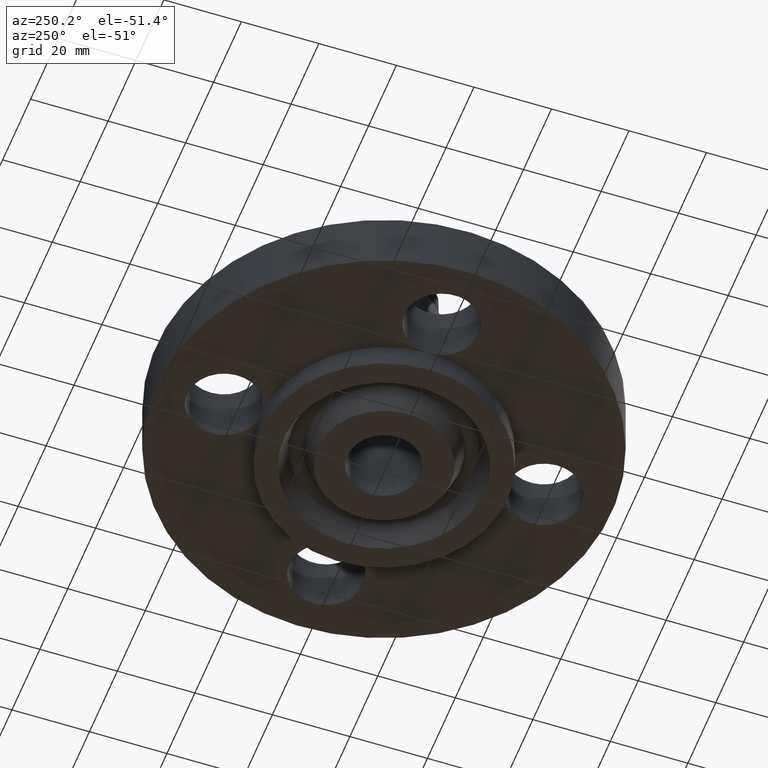
[diagram: clean part render]
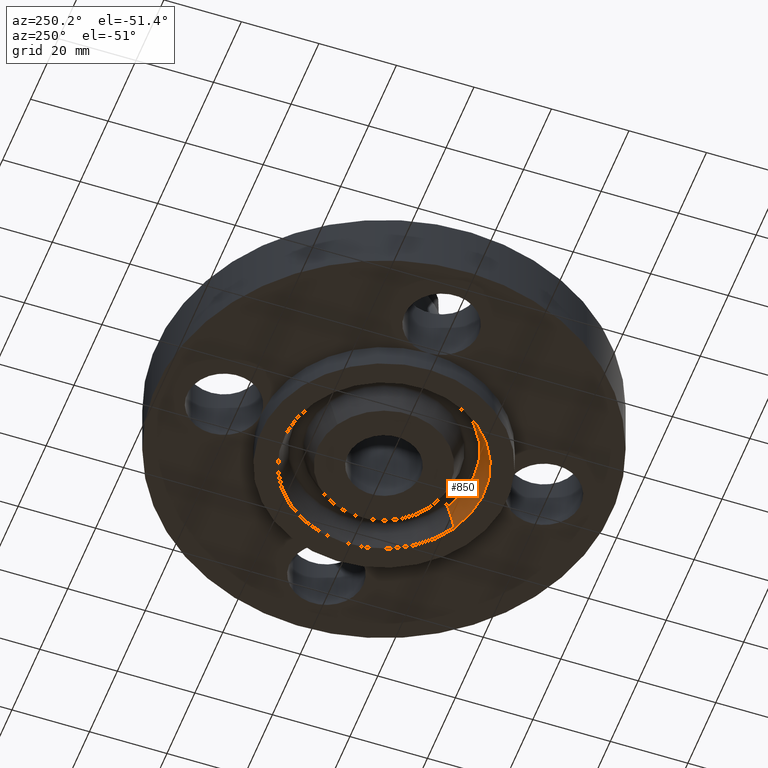
[diagram: same view with one face highlighted and labeled with its STEP entity id]
A machine part, auxiliary view. The second image highlights one B-rep face of the part: STEP entity #850.
In plain terms, the highlighted conical surface has half-angle 23 deg.
Its self-contained STEP definition (entity closure, byte-faithful):
#749=AXIS2_PLACEMENT_3D('Circle Axis2P3D',#747,#748,$) ;
#796=AXIS2_PLACEMENT_3D('Circle Axis2P3D',#794,#795,$) ;
#832=AXIS2_PLACEMENT_3D('Cone Axis2P3D',#829,#830,#831) ;
#747=CARTESIAN_POINT('Axis2P3D Location',(-1.04902962957E-016,-1.39870617276E-016,-0.250000000001)) ;
#751=CARTESIAN_POINT('Vertex',(0.487096347224,-0.891623882884,-0.250000000001)) ;
#753=CARTESIAN_POINT('Vertex',(-0.487096347224,0.891623882884,-0.250000000001)) ;
#794=CARTESIAN_POINT('Axis2P3D Location',(0.,0.,-0.0188873350169)) ;
#798=CARTESIAN_POINT('Vertex',(-0.440063979875,0.80553171193,-0.0188873350169)) ;
#800=CARTESIAN_POINT('Vertex',(0.440063979875,-0.80553171193,-0.0188873350169)) ;
#829=CARTESIAN_POINT('Axis2P3D Location',(0.,0.,-0.0188873350169)) ;
#834=CARTESIAN_POINT('Line Origine',(-0.46358016355,0.848577797407,-0.134443667509)) ;
#839=CARTESIAN_POINT('Line Origine',(0.46358016355,-0.848577797407,-0.134443667509)) ;
#748=DIRECTION('Axis2P3D Direction',(0.,0.,-0.0393700787402)) ;
#795=DIRECTION('Axis2P3D Direction',(0.,0.,0.0393700787402)) ;
#830=DIRECTION('Axis2P3D Direction',(-0.,-0.,-0.0393700787402)) ;
#831=DIRECTION('Axis2P3D XDirection',(-0.0188750212049,0.0345504945626,0.)) ;
#835=DIRECTION('Vector Direction',(-0.00737505833565,0.0134999537303,-0.0362403485611)) ;
#840=DIRECTION('Vector Direction',(0.00737505833565,-0.0134999537303,-0.0362403485611)) ;
#836=VECTOR('Line Direction',#835,0.0393700787402) ;
#841=VECTOR('Line Direction',#840,0.0393700787402) ;
#845=ORIENTED_EDGE('',*,*,#755,.T.) ;
#846=ORIENTED_EDGE('',*,*,#838,.T.) ;
#847=ORIENTED_EDGE('',*,*,#802,.T.) ;
#848=ORIENTED_EDGE('',*,*,#843,.F.) ;
#850=ADVANCED_FACE('PartBody',(#849),#833,.F.) ;
#750=CIRCLE('generated circle',#749,1.016) ;
#797=CIRCLE('generated circle',#796,0.917898494011) ;
#833=CONICAL_SURFACE('Cone',#832,0.917898494011,0.401425727959) ;
#755=EDGE_CURVE('',#752,#754,#750,.T.) ;
#802=EDGE_CURVE('',#799,#801,#797,.T.) ;
#838=EDGE_CURVE('',#754,#799,#837,.F.) ;
#843=EDGE_CURVE('',#752,#801,#842,.F.) ;
#844=EDGE_LOOP('',(#845,#846,#847,#848)) ;
#849=FACE_OUTER_BOUND('',#844,.T.) ;
#837=LINE('Line',#834,#836) ;
#842=LINE('Line',#839,#841) ;
#752=VERTEX_POINT('',#751) ;
#754=VERTEX_POINT('',#753) ;
#799=VERTEX_POINT('',#798) ;
#801=VERTEX_POINT('',#800) ;